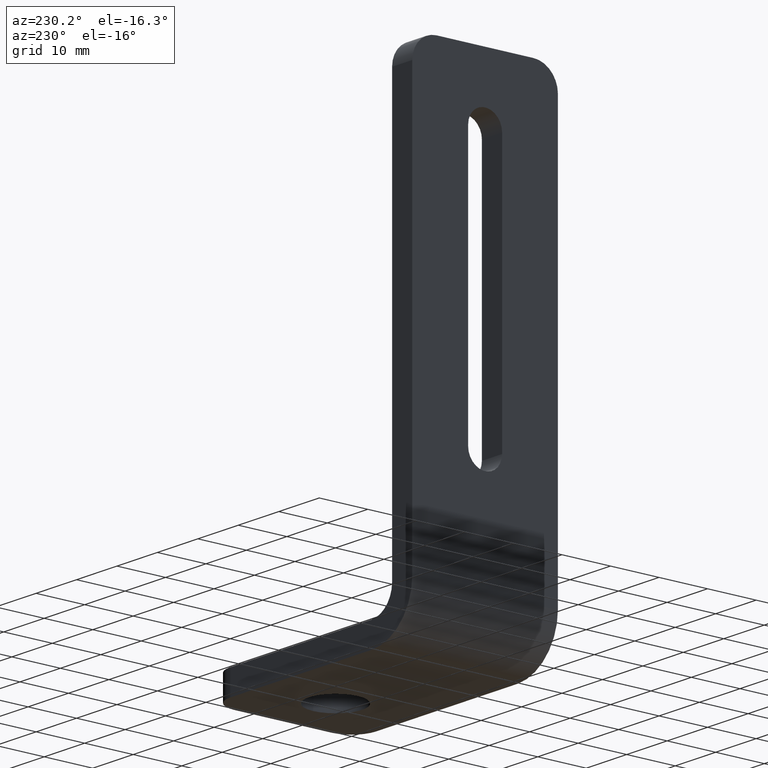
[diagram: clean part render]
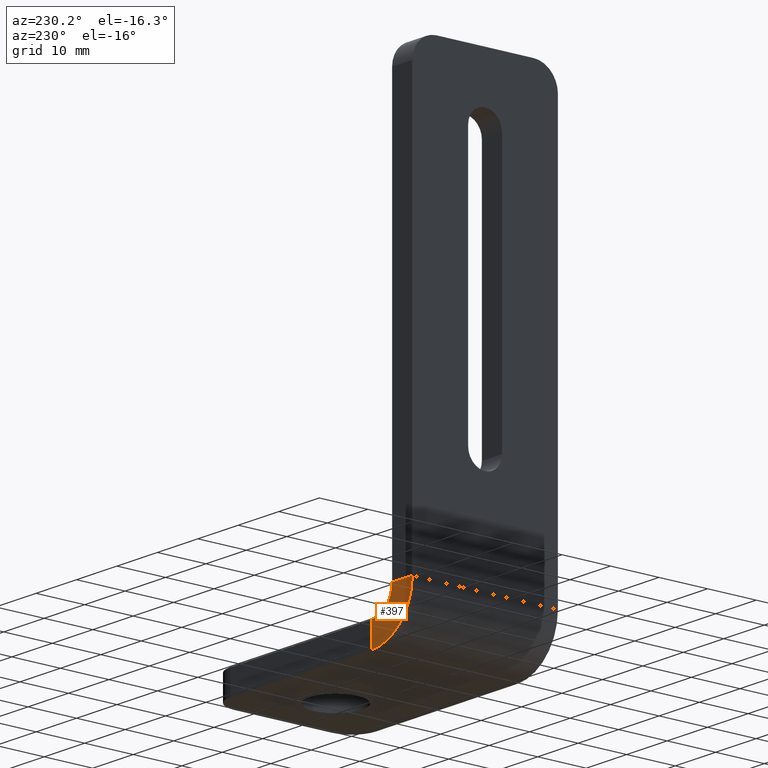
[diagram: same view with one face highlighted and labeled with its STEP entity id]
A machine part, auxiliary view. The second image highlights one B-rep face of the part: STEP entity #397.
In plain terms, the highlighted planar face has unit normal (0, 1, 0).
Its self-contained STEP definition (entity closure, byte-faithful):
#29=PLANE('',#438);
#51=FACE_OUTER_BOUND('',#77,.T.);
#77=EDGE_LOOP('',(#338,#339,#340,#341));
#94=LINE('',#598,#130);
#107=LINE('',#637,#143);
#130=VECTOR('',#477,5.);
#143=VECTOR('',#512,5.);
#171=CIRCLE('',#435,10.);
#173=CIRCLE('',#439,5.);
#182=VERTEX_POINT('',#585);
#186=VERTEX_POINT('',#597);
#194=VERTEX_POINT('',#618);
#201=VERTEX_POINT('',#636);
#223=EDGE_CURVE('',#182,#186,#94,.T.);
#242=EDGE_CURVE('',#194,#201,#107,.T.);
#254=EDGE_CURVE('',#182,#201,#171,.T.);
#258=EDGE_CURVE('',#194,#186,#173,.T.);
#338=ORIENTED_EDGE('',*,*,#242,.F.);
#339=ORIENTED_EDGE('',*,*,#258,.T.);
#340=ORIENTED_EDGE('',*,*,#223,.F.);
#341=ORIENTED_EDGE('',*,*,#254,.T.);
#397=ADVANCED_FACE('',(#51),#29,.T.);
#435=AXIS2_PLACEMENT_3D('',#661,#539,#540);
#438=AXIS2_PLACEMENT_3D('',#666,#547,#548);
#439=AXIS2_PLACEMENT_3D('',#667,#549,#550);
#477=DIRECTION('',(0.,0.,1.));
#512=DIRECTION('',(-1.,0.,-6.12323399573677E-17));
#539=DIRECTION('center_axis',(0.,1.,0.));
#540=DIRECTION('ref_axis',(0.,0.,-1.));
#547=DIRECTION('center_axis',(0.,1.,0.));
#548=DIRECTION('ref_axis',(0.,0.,1.));
#549=DIRECTION('center_axis',(0.,-1.,0.));
#550=DIRECTION('ref_axis',(-1.,0.,0.));
#585=CARTESIAN_POINT('',(-15.,15.,0.));
#597=CARTESIAN_POINT('',(-15.,15.,5.));
#598=CARTESIAN_POINT('',(-15.,15.,2.5));
#618=CARTESIAN_POINT('',(-20.,15.,10.));
#636=CARTESIAN_POINT('',(-25.,15.,10.));
#637=CARTESIAN_POINT('',(-21.4788735772974,15.,10.));
#661=CARTESIAN_POINT('Origin',(-15.,15.,10.));
#666=CARTESIAN_POINT('Origin',(-20.,15.,10.));
#667=CARTESIAN_POINT('Origin',(-15.,15.,10.));